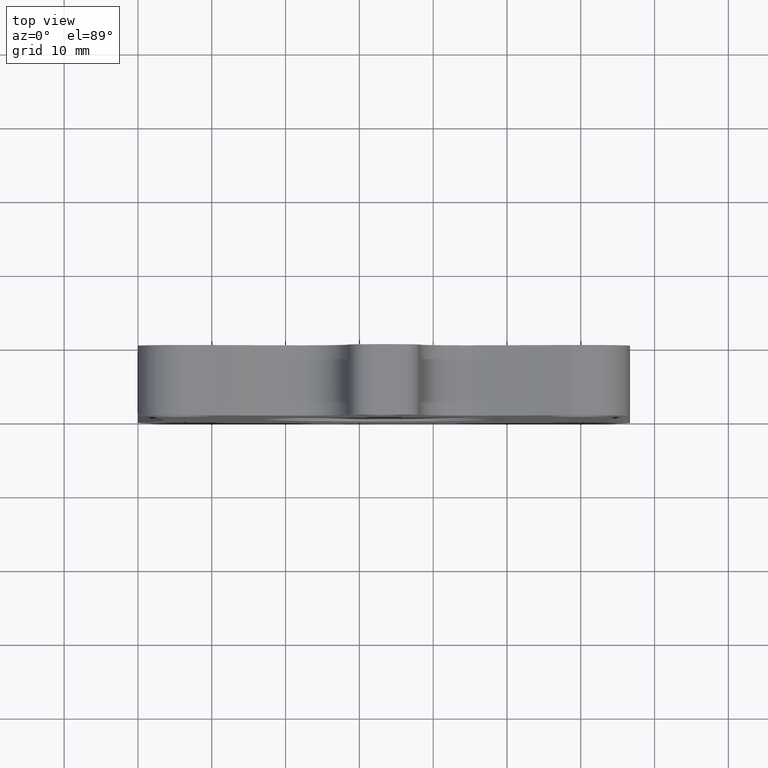
[diagram: clean part render]
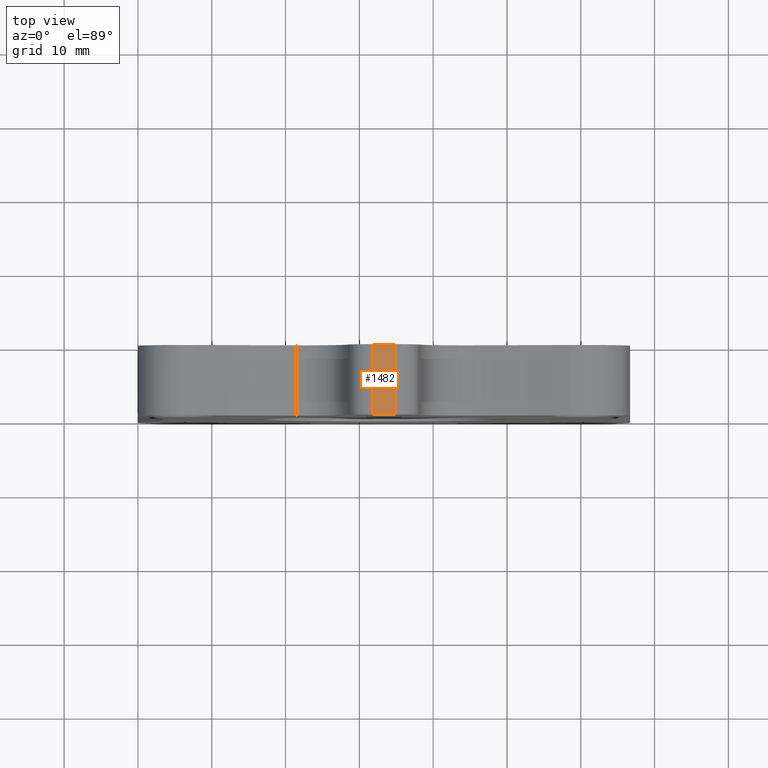
[diagram: same view with one face highlighted and labeled with its STEP entity id]
A machine part, top view. The second image highlights one B-rep face of the part: STEP entity #1482.
In plain terms, the highlighted planar face has unit normal (0, -0, 1).
Its self-contained STEP definition (entity closure, byte-faithful):
#50 = DIRECTION ( 'NONE',  ( 9.106159978880871200E-017, -0.0000000000000000000, 1.000000000000000000 ) ) ;
#139 = LINE ( 'NONE', #577, #1313 ) ;
#194 = CARTESIAN_POINT ( 'NONE',  ( 1.375737769683917500, 0.0000000000000000000, 0.2375000000000001000 ) ) ;
#282 = PLANE ( 'NONE',  #1064 ) ;
#335 = LINE ( 'NONE', #1217, #1062 ) ;
#340 = ORIENTED_EDGE ( 'NONE', *, *, #1493, .T. ) ;
#397 = VERTEX_POINT ( 'NONE', #877 ) ;
#519 = CARTESIAN_POINT ( 'NONE',  ( 1.375737769683917500, 0.3750000000000000600, 0.2375000000000001000 ) ) ;
#540 = ORIENTED_EDGE ( 'NONE', *, *, #545, .T. ) ;
#545 = EDGE_CURVE ( 'NONE', #701, #1150, #1148, .T. ) ;
#577 = CARTESIAN_POINT ( 'NONE',  ( 1.125000000000000200, 0.3750000000000000600, 0.2375000000000001300 ) ) ;
#596 = DIRECTION ( 'NONE',  ( -0.0000000000000000000, 1.000000000000000000, -0.0000000000000000000 ) ) ;
#656 = DIRECTION ( 'NONE',  ( 1.000000000000000000, 0.0000000000000000000, -9.106159978880871200E-017 ) ) ;
#701 = VERTEX_POINT ( 'NONE', #194 ) ;
#822 = EDGE_CURVE ( 'NONE', #1383, #1150, #139, .T. ) ;
#876 = VECTOR ( 'NONE', #596, 39.37007874015748100 ) ;
#877 = CARTESIAN_POINT ( 'NONE',  ( 1.249262230316082700, 0.0000000000000000000, 0.2375000000000001300 ) ) ;
#891 = DIRECTION ( 'NONE',  ( 1.000000000000000000, 0.0000000000000000000, -9.106159978880871200E-017 ) ) ;
#904 = EDGE_LOOP ( 'NONE', ( #340, #540, #947, #1418 ) ) ;
#947 = ORIENTED_EDGE ( 'NONE', *, *, #822, .F. ) ;
#1062 = VECTOR ( 'NONE', #1452, 39.37007874015748100 ) ;
#1064 = AXIS2_PLACEMENT_3D ( 'NONE', #1344, #50, #891 ) ;
#1148 = LINE ( 'NONE', #1212, #876 ) ;
#1150 = VERTEX_POINT ( 'NONE', #519 ) ;
#1172 = EDGE_CURVE ( 'NONE', #1383, #397, #335, .T. ) ;
#1212 = CARTESIAN_POINT ( 'NONE',  ( 1.375737769683917500, 0.3749999999999998900, 0.2375000000000001000 ) ) ;
#1217 = CARTESIAN_POINT ( 'NONE',  ( 1.249262230316082700, 0.0000000000000000000, 0.2375000000000001300 ) ) ;
#1313 = VECTOR ( 'NONE', #1387, 39.37007874015748100 ) ;
#1325 = CARTESIAN_POINT ( 'NONE',  ( 1.249262230316082700, 0.3750000000000000600, 0.2375000000000001300 ) ) ;
#1344 = CARTESIAN_POINT ( 'NONE',  ( 1.125000000000000200, -0.5630497313737041800, 0.2375000000000001300 ) ) ;
#1345 = LINE ( 'NONE', #1351, #1413 ) ;
#1351 = CARTESIAN_POINT ( 'NONE',  ( 1.125000000000000200, 0.0000000000000000000, 0.2375000000000001300 ) ) ;
#1383 = VERTEX_POINT ( 'NONE', #1325 ) ;
#1385 = FACE_OUTER_BOUND ( 'NONE', #904, .T. ) ;
#1387 = DIRECTION ( 'NONE',  ( 1.000000000000000000, 0.0000000000000000000, -9.106159978880871200E-017 ) ) ;
#1413 = VECTOR ( 'NONE', #656, 39.37007874015748100 ) ;
#1418 = ORIENTED_EDGE ( 'NONE', *, *, #1172, .T. ) ;
#1452 = DIRECTION ( 'NONE',  ( 0.0000000000000000000, -1.000000000000000000, 0.0000000000000000000 ) ) ;
#1482 = ADVANCED_FACE ( 'NONE', ( #1385 ), #282, .T. ) ;
#1493 = EDGE_CURVE ( 'NONE', #397, #701, #1345, .T. ) ;